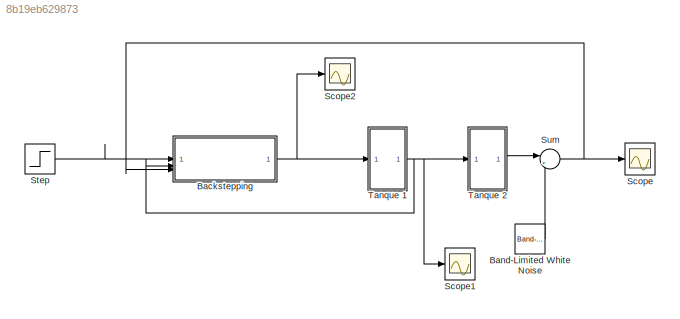
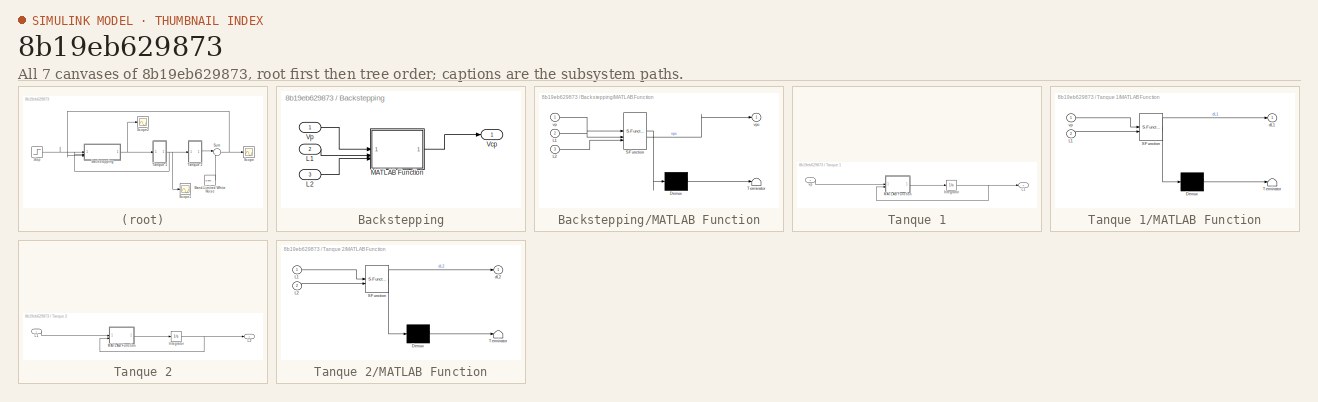
[diagram: thumbnail index - all 7 canvases of the model, root first then tree order]
MODEL slx_8b19eb629873
KIND model
CONFIG AbsTol = auto
CONFIG EnableMultiTasking = off
CONFIG FixedStep = auto
CONFIG MaxStep = auto
CONFIG MinStep = auto
CONFIG RelTol = 1e-3
CONFIG SampleTimeConstraint = Unconstrained
CONFIG SolverName = VariableStepAuto
CONFIG StartTime = 0.0
CONFIG StopTime = 100
BLOCK [SubSystem] Backstepping
BLOCK [Inport] Backstepping/L1
  Port = 2
BLOCK [Inport] Backstepping/L2
  Port = 3
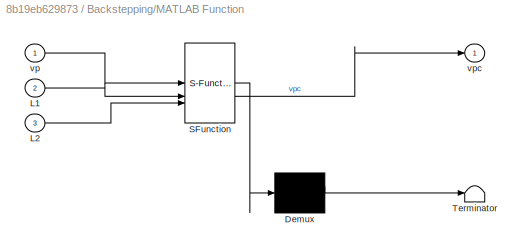
BLOCK [SubSystem] Backstepping/MATLAB Function
  ErrorFcn = Stateflow.Translate.translate
  PermitHierarchicalResolution = ExplicitOnly
  SFBlockType = MATLAB Function
  TreatAsAtomicUnit = on
BLOCK [Demux] Backstepping/MATLAB Function/ Demux 
  Outputs = 1
BLOCK [S-Function] Backstepping/MATLAB Function/ SFunction 
  EnableBusSupport = on
  FunctionName = sf_sfun
  PortCounts = [3 2]
  SFcnIsStateOwnerBlock = off
  SFunctionDeploymentMode = off
  Tag = Stateflow S-Function 3
BLOCK [Terminator] Backstepping/MATLAB Function/ Terminator 
BLOCK [Inport] Backstepping/MATLAB Function/L1
  Port = 2
BLOCK [Inport] Backstepping/MATLAB Function/L2
  Port = 3
BLOCK [Inport] Backstepping/MATLAB Function/vp
BLOCK [Outport] Backstepping/MATLAB Function/vpc
BLOCK [Outport] Backstepping/Vcp
BLOCK [Inport] Backstepping/Vp
BLOCK [Reference] Band-Limited White Noise  REF=simulink/Sources/Band-Limited
White Noise
  SourceBlock = simulink/Sources/Band-Limited\nWhite Noise
  SourceType = Band-Limited White Noise.
BLOCK [Scope] Scope
  Floating = off
  NumInputPorts = 1
  ScopeSpecificationString = Simulink.scopes.TimeScopeBlockCfg('CurrentConfiguration', extmgr.ConfigurationSet(extmgr.Configuration('Core','General UI',true),extmgr.Configuration('Core','Source UI',true),extmgr.Configuration('Sources','WiredSimulink',true),extmgr.Configuration('Visuals','Time Domain',true,'SerializedDisplays',{struct('MinYLimReal','-0.38506','MaxYLimReal','3.96974','YLabelReal','','MinYLimMag','0.00000','MaxY...<+1489ch>
BLOCK [Scope] Scope1
  Floating = off
  NumInputPorts = 1
  ScopeSpecificationString = Simulink.scopes.TimeScopeBlockCfg('CurrentConfiguration', extmgr.ConfigurationSet(extmgr.Configuration('Core','General UI',true),extmgr.Configuration('Core','Source UI',true),extmgr.Configuration('Sources','WiredSimulink',true,'DataLoggingVariableName','ScopeData1'),extmgr.Configuration('Visuals','Time Domain',true,'SerializedDisplays',{struct('MinYLimReal','-0.22161','MaxYLimReal','1.99449','YLab...<+1485ch>
BLOCK [Scope] Scope2
  Floating = off
  NumInputPorts = 1
  ScopeSpecificationString = Simulink.scopes.TimeScopeBlockCfg('CurrentConfiguration', extmgr.ConfigurationSet(extmgr.Configuration('Core','General UI',true),extmgr.Configuration('Core','Source UI',true),extmgr.Configuration('Sources','WiredSimulink',true,'DataLoggingVariableName','ScopeData1'),extmgr.Configuration('Visuals','Time Domain',true,'SerializedDisplays',{struct('MinYLimReal','-1.22316','MaxYLimReal','11.00848','YLa...<+1493ch>
BLOCK [Step] Step
  After = 6
  SampleTime = 0
BLOCK [Sum] Sum
  Inputs = |++
BLOCK [SubSystem] Tanque 1
BLOCK [Integrator] Tanque 1/Integrator
BLOCK [Outport] Tanque 1/L1
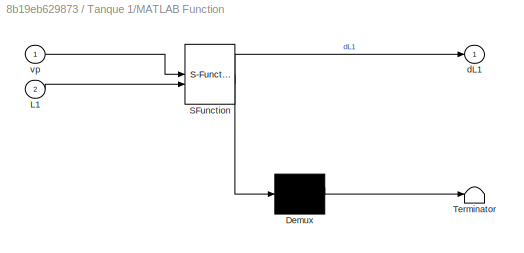
BLOCK [SubSystem] Tanque 1/MATLAB Function
  ErrorFcn = Stateflow.Translate.translate
  PermitHierarchicalResolution = ExplicitOnly
  SFBlockType = MATLAB Function
  TreatAsAtomicUnit = on
BLOCK [Demux] Tanque 1/MATLAB Function/ Demux 
  Outputs = 1
BLOCK [S-Function] Tanque 1/MATLAB Function/ SFunction 
  EnableBusSupport = on
  FunctionName = sf_sfun
  PortCounts = [2 2]
  SFcnIsStateOwnerBlock = off
  SFunctionDeploymentMode = off
  Tag = Stateflow S-Function 2
BLOCK [Terminator] Tanque 1/MATLAB Function/ Terminator 
BLOCK [Inport] Tanque 1/MATLAB Function/L1
  Port = 2
BLOCK [Outport] Tanque 1/MATLAB Function/dL1
BLOCK [Inport] Tanque 1/MATLAB Function/vp
BLOCK [Inport] Tanque 1/vp
BLOCK [SubSystem] Tanque 2
BLOCK [Integrator] Tanque 2/Integrator
BLOCK [Inport] Tanque 2/L1
BLOCK [Outport] Tanque 2/L2
BLOCK [SubSystem] Tanque 2/MATLAB Function
  ErrorFcn = Stateflow.Translate.translate
  PermitHierarchicalResolution = ExplicitOnly
  SFBlockType = MATLAB Function
  TreatAsAtomicUnit = on
BLOCK [Demux] Tanque 2/MATLAB Function/ Demux 
  Outputs = 1
BLOCK [S-Function] Tanque 2/MATLAB Function/ SFunction 
  EnableBusSupport = on
  FunctionName = sf_sfun
  PortCounts = [2 2]
  SFcnIsStateOwnerBlock = off
  SFunctionDeploymentMode = off
  Tag = Stateflow S-Function 1
BLOCK [Terminator] Tanque 2/MATLAB Function/ Terminator 
BLOCK [Inport] Tanque 2/MATLAB Function/L1
BLOCK [Inport] Tanque 2/MATLAB Function/L2
  Port = 2
BLOCK [Outport] Tanque 2/MATLAB Function/dL2
LINE Backstepping/L1:1 -> Backstepping/MATLAB Function:2
LINE Backstepping/L2:1 -> Backstepping/MATLAB Function:3
LINE Backstepping/MATLAB Function:1 -> Backstepping/Vcp:1
LINE Backstepping/Vp:1 -> Backstepping/MATLAB Function:1
NET Backstepping:1 -> Scope2:1, Tanque 1:1
LINE Band-Limited White Noise:1 -> Sum:2
LINE Step:1 -> Backstepping:1
NET Sum:1 -> Backstepping:3, Scope:1
NET Tanque 1/Integrator:1 -> Tanque 1/L1:1, Tanque 1/MATLAB Function:2
LINE Tanque 1/MATLAB Function:1 -> Tanque 1/Integrator:1
LINE Tanque 1/vp:1 -> Tanque 1/MATLAB Function:1
NET Tanque 1:1 -> Backstepping:2, Scope1:1, Tanque 2:1
NET Tanque 2/Integrator:1 -> Tanque 2/L2:1, Tanque 2/MATLAB Function:2
LINE Tanque 2/L1:1 -> Tanque 2/MATLAB Function:1
LINE Tanque 2/MATLAB Function:1 -> Tanque 2/Integrator:1
LINE Tanque 2:1 -> Sum:1
note: NET lines group one-source signal fan-out (src -> all destinations, sorted); 1:1 wires keep LINE
CHART Tanque 2/MATLAB Function states=1 transitions=1
  STATE_LABEL 'eML_blk_kernel()'
  STATE_LABEL 'SCRIPT:\nfunction dL2 = fcn(L1, L2)\nif L2<0 \n   L2=0; \nend\nd1=0.635;\na1=pi*d1^2/4;\nD2=4.445;\nd2=0.47625;\nA2=pi*D2^2/4;\na2=pi*d2^2/4;\ng=980;\n\nQin=sqrt(2*g*L1)*a1;\nVout2=sqrt(2*g*L2);\nQout2=Vout2*a2;\n\ndL2 = (Qin-Qout2)/A2;\n'
CHART Tanque 1/MATLAB Function states=1 transitions=1
  STATE_LABEL 'eML_blk_kernel()'
  STATE_LABEL 'SCRIPT:\nfunction dL1 = fcn(vp, L1)\n\nD1=4.445;\nd1=0.635;\nA1=pi*D1^2/4;\na1=pi*d1^2/4;\nKp=3.3;\ng=980;\n\nQi=vp*Kp;\nVout=sqrt(2*g*L1);\nQout=Vout*a1;\n\ndL1 = (Qi-Qout)/A1;\n'
CHART Backstepping/MATLAB Function states=1 transitions=1
  STATE_LABEL 'eML_blk_kernel()'
  STATE_LABEL 'SCRIPT:\nfunction vpc = fcn(vp,L1,L2)\n\nx1=L2;\nx2=L1;\nh2d=3;\n\nc1=3;\nc2=2;\n\nD1=4.445;\nd1=0.635;\nA1=pi*D1^2/4;\na1=pi*d1^2/4;\nKp=3.3;\ng=980;\n\nD2=4.445;\nd2=0.47625;\nA2=pi*D2^2/4;\na2=pi*d2^2/4;\n\nB=a1*sqrt(2*g)/A2;\nB2=a2*sqrt(2*g)/A2;\n\ny=Kp/A1;\ny2=a1*sqrt(2*g)/A1;\n\nif L2<h2d\n    vpc=vp;\nelse\n\n    z1=x1-h2d;\n    phi=(B2*sqrt(x1)-c1*z1)/B;\n    z2=sqrt(x2)-phi;\n\n    dphi=((B2/2*sqrt(x1)-c1)*(B*sqrt(x2)-B2*sq...<+124ch>'
CHART  states=0 transitions=0
CHART  states=0 transitions=0
CHART  states=0 transitions=0
